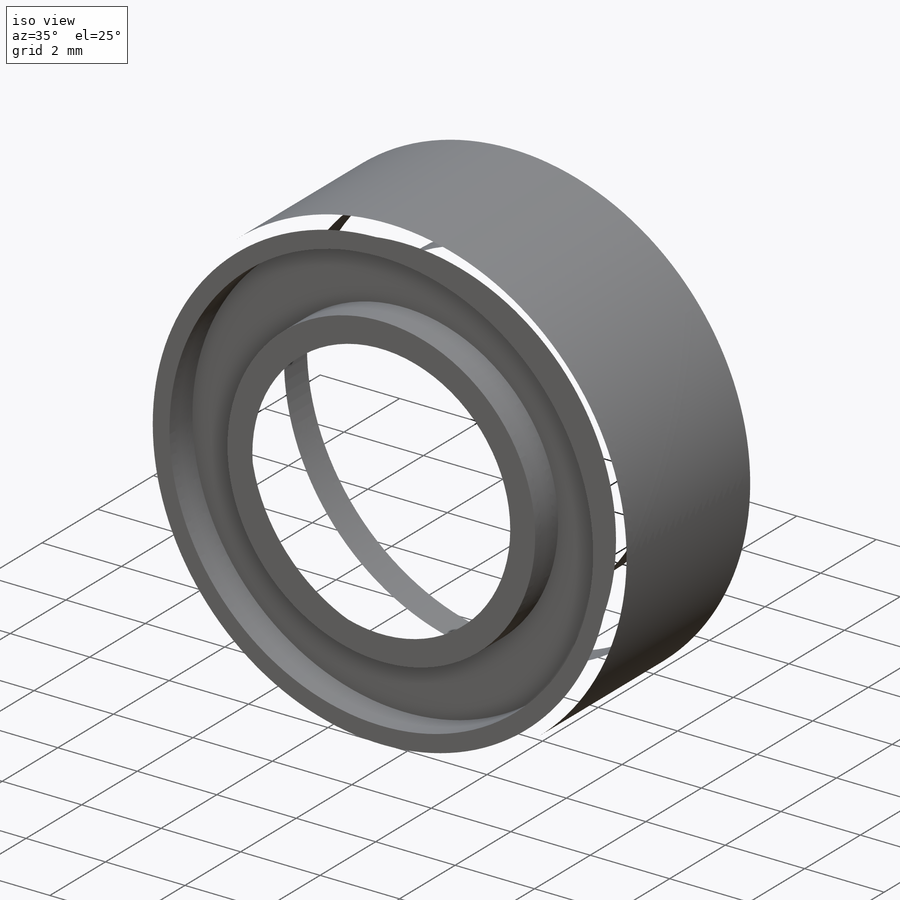
[diagram: iso view]
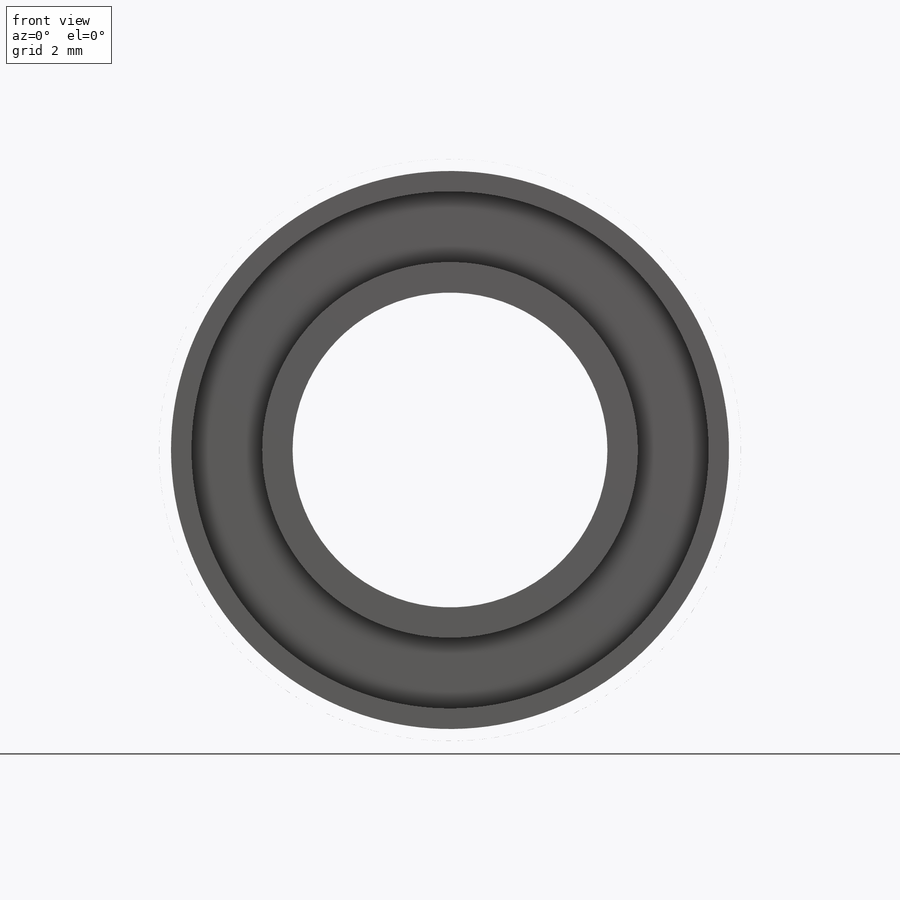
[diagram: front view]
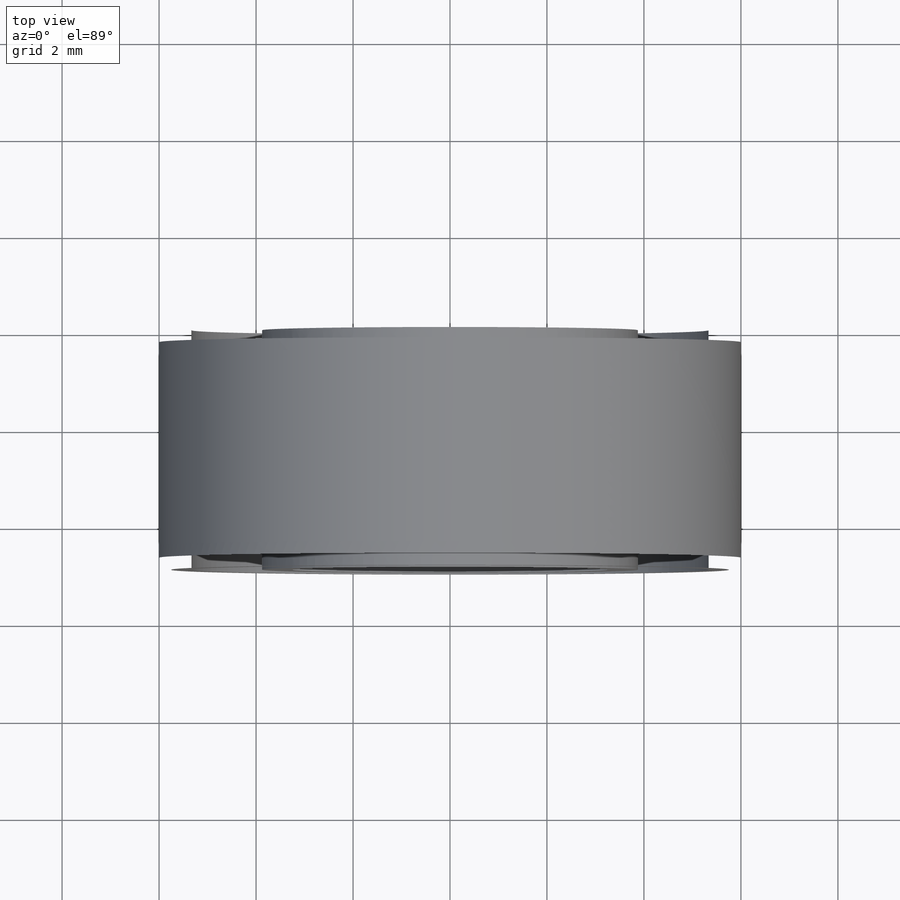
[diagram: top view]
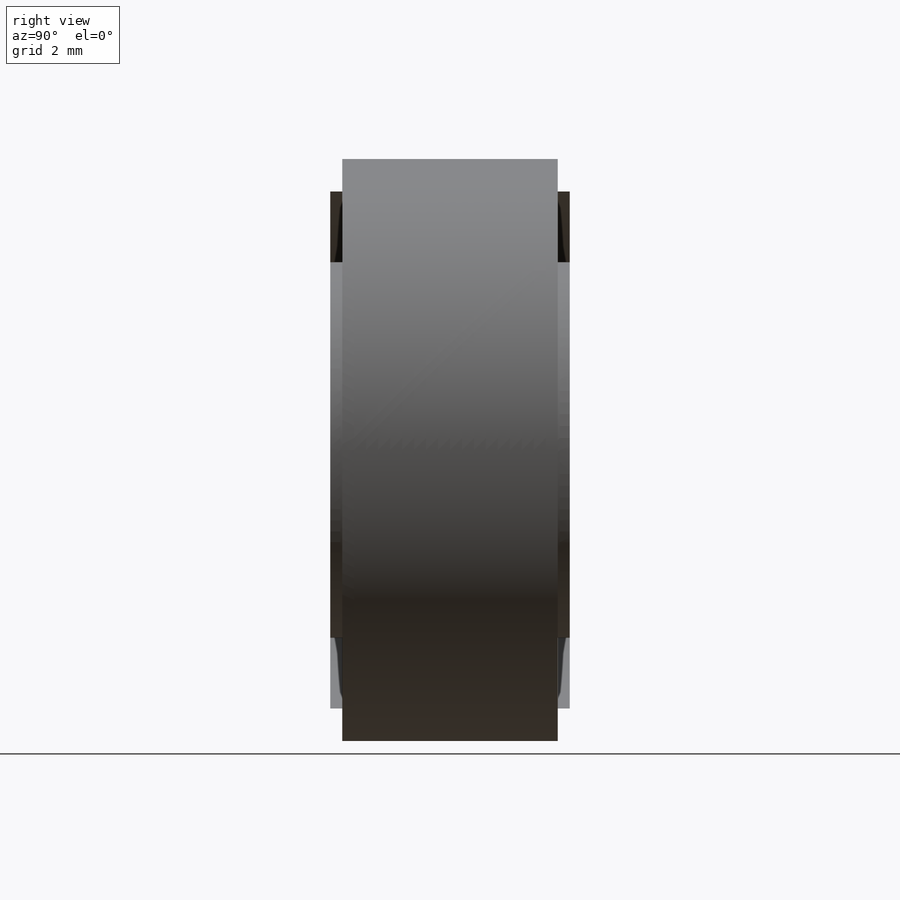
[diagram: right view]
SOLIDWORKS PART (.sldprt)
format: sldprt  version: not decoded by parser v0  size: 803,328 bytes
history: native  units: mm
features: sketch x9, extrude x3, hole x3, material x1, plane x1, chamfer x1 (+13 scaffold rows collapsed)
feature tree (31):
  scaffold x13  (default folders/planes/origin — collapsed)
  material  "Alloy Steel"
  plane  "Plane1"  Offset=4.94mm
  sketch  "Sketch1"  dims[D1=12.0mm]
  extrude  "Extrude1"  Depth=4.94mm
  hole  "Hole1"  Diameter=10.6635mm Depth=0.823333mm
  sketch  "Sketch3"
  sketch  "Sketch2"  dims[Diameter=10.6635mm Depth=~0.823333mm]
  sketch  "Sketch4"  dims[D1=~7.74725mm]
  extrude  "Extrude2"  Depth=0.823333mm
  hole  "Hole2"  Diameter=10.6635mm Depth=0.823333mm
  sketch  "Sketch6"
  sketch  "Sketch5"  dims[Diameter=10.6635mm Depth=~0.823333mm]
  sketch  "Sketch7"  dims[D1=~7.74725mm]
  extrude  "Extrude3"  Depth=0.823333mm
  hole  "Hole3"  Diameter=5.9975mm Depth=4.94mm
  sketch  "Sketch9"
  sketch  "Sketch8"  dims[Diameter=5.9975mm Depth=4.94mm]
  chamfer  "Chamfer1"  Distance=0.247mm Angle=45deg
decode coverage: 13 of 16 modeling features carry decoded parameters
note: ~ marks probable driven/reference dimensions
note: suppression state not decoded; provenance and decode notes live in map.json
